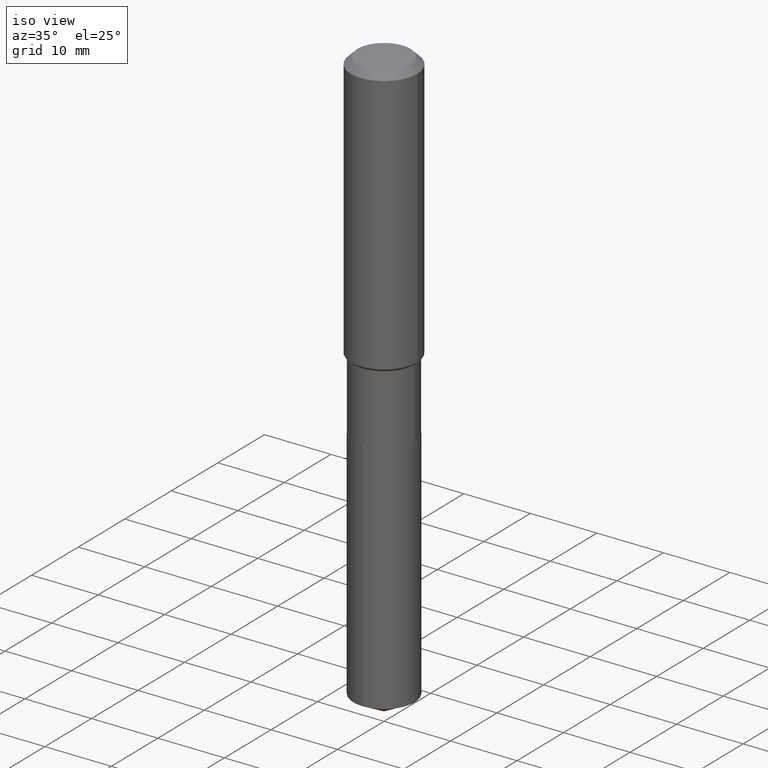
[diagram: clean part render]
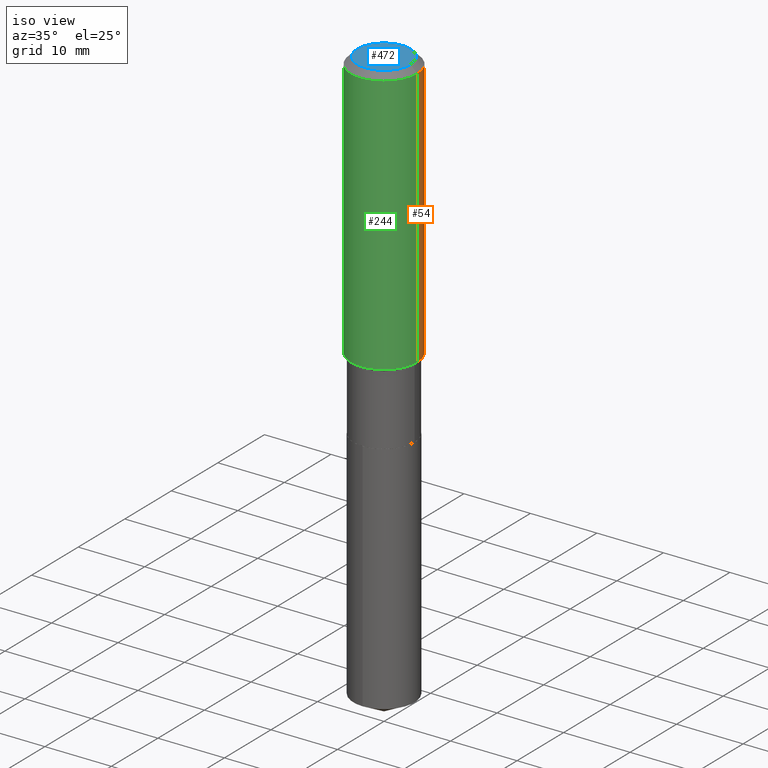
[diagram: same view with three faces highlighted in distinct colors, each labeled with its STEP entity id]
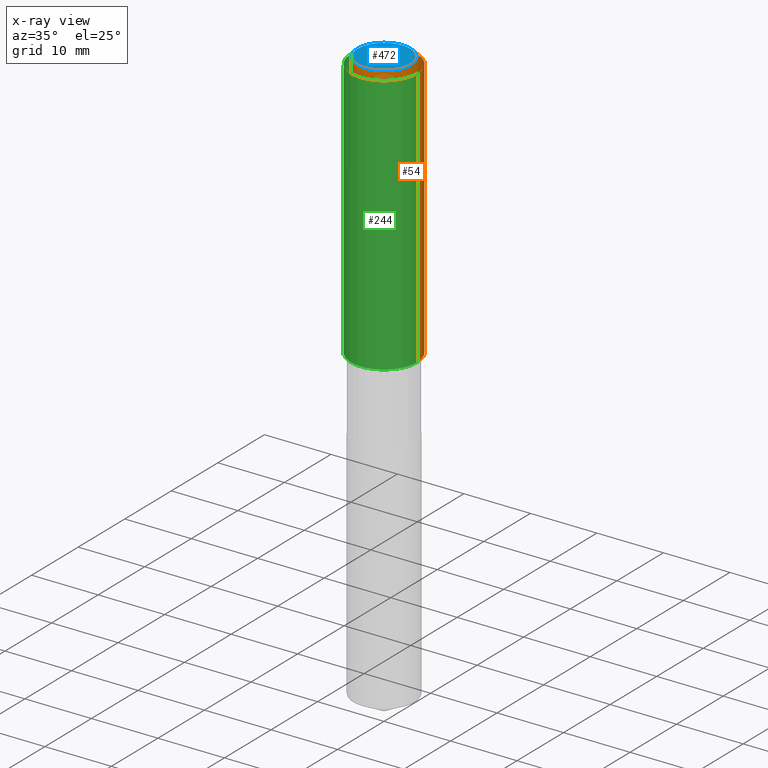
[diagram: x-ray of the same camera — body ghosted, the three highlighted faces saturated]
A machine part, iso view with three faces highlighted in distinct colors.
The next image is the same camera in x-ray (body ghosted, the three faces saturated) — at least one of them is partly hidden behind the body in this view.
Their STEP definitions:

[orange] entity #54 — the highlighted cylindrical surface (partial cylindrical patch) has radius 5 mm, axis along (-0, 0, 1).
#12 = DIRECTION ( 'NONE',  ( -2.445468806185136597E-29, 3.491481338843145583E-15, 1.000000000000000000 ) ) ;
#28 = CIRCLE ( 'NONE', #212, 0.1968500000000000250 ) ;
#36 = EDGE_CURVE ( 'NONE', #324, #253, #110, .T. ) ;
#42 = DIRECTION ( 'NONE',  ( -2.445468806185136877E-29, 3.491481338843145188E-15, 1.000000000000000000 ) ) ;
#44 = DIRECTION ( 'NONE',  ( 1.000000000000000000, -6.982962677686265922E-15, 0.000000000000000000 ) ) ;
#54 = ADVANCED_FACE ( 'NONE', ( #111 ), #425, .T. ) ;
#71 = CARTESIAN_POINT ( 'NONE',  ( -0.1968500000000001082, 1.398703375343757985E-15, -9.682923725166787881E-30 ) ) ;
#72 = DIRECTION ( 'NONE',  ( -2.445468806185136597E-29, 3.491481338843145583E-15, 1.000000000000000000 ) ) ;
#75 = CARTESIAN_POINT ( 'NONE',  ( 0.000000000000000000, 0.000000000000000000, 0.000000000000000000 ) ) ;
#76 = EDGE_CURVE ( 'NONE', #247, #162, #148, .T. ) ;
#94 = CARTESIAN_POINT ( 'NONE',  ( 9.627810689950954155E-31, -1.374596203102556547E-16, -0.03937000000000029365 ) ) ;
#110 = LINE ( 'NONE', #456, #394 ) ;
#111 = FACE_OUTER_BOUND ( 'NONE', #469, .T. ) ;
#113 = DIRECTION ( 'NONE',  ( -2.445468806185136597E-29, 3.491481338843145583E-15, 1.000000000000000000 ) ) ;
#119 = DIRECTION ( 'NONE',  ( -2.445468806185136877E-29, 3.491481338843145188E-15, 1.000000000000000000 ) ) ;
#148 = LINE ( 'NONE', #71, #250 ) ;
#151 = AXIS2_PLACEMENT_3D ( 'NONE', #222, #113, #44 ) ;
#161 = CARTESIAN_POINT ( 'NONE',  ( 0.1968500000000000250, -1.512055823412797189E-15, -0.03937000000000029365 ) ) ;
#162 = VERTEX_POINT ( 'NONE', #384 ) ;
#170 = EDGE_CURVE ( 'NONE', #324, #247, #269, .T. ) ;
#185 = ORIENTED_EDGE ( 'NONE', *, *, #76, .T. ) ;
#189 = ORIENTED_EDGE ( 'NONE', *, *, #399, .F. ) ;
#197 = DIRECTION ( 'NONE',  ( 1.000000000000000000, -6.982962677686266711E-15, 4.876176775795935793E-29 ) ) ;
#212 = AXIS2_PLACEMENT_3D ( 'NONE', #94, #12, #216 ) ;
#216 = DIRECTION ( 'NONE',  ( 1.000000000000000000, -6.982962677686265922E-15, 0.000000000000000000 ) ) ;
#222 = CARTESIAN_POINT ( 'NONE',  ( 3.872277581153853552E-29, -5.528586125991177772E-15, -1.583449999999999580 ) ) ;
#238 = ORIENTED_EDGE ( 'NONE', *, *, #36, .F. ) ;
#247 = VERTEX_POINT ( 'NONE', #464 ) ;
#250 = VECTOR ( 'NONE', #42, 39.37007874015748143 ) ;
#253 = VERTEX_POINT ( 'NONE', #161 ) ;
#268 = CARTESIAN_POINT ( 'NONE',  ( 0.1968500000000002192, -6.903182329093720169E-15, -1.583449999999999580 ) ) ;
#269 = CIRCLE ( 'NONE', #151, 0.1968500000000002192 ) ;
#313 = AXIS2_PLACEMENT_3D ( 'NONE', #75, #72, #197 ) ;
#324 = VERTEX_POINT ( 'NONE', #268 ) ;
#384 = CARTESIAN_POINT ( 'NONE',  ( -0.1968500000000000250, -1.434319497806958297E-15, -0.03937000000000029365 ) ) ;
#394 = VECTOR ( 'NONE', #119, 39.37007874015748143 ) ;
#399 = EDGE_CURVE ( 'NONE', #253, #162, #28, .T. ) ;
#425 = CYLINDRICAL_SURFACE ( 'NONE', #313, 0.1968500000000001082 ) ;
#433 = ORIENTED_EDGE ( 'NONE', *, *, #170, .T. ) ;
#456 = CARTESIAN_POINT ( 'NONE',  ( 0.1968500000000001082, -1.374596203102542397E-15, 9.598753983154305062E-30 ) ) ;
#464 = CARTESIAN_POINT ( 'NONE',  ( -0.1968500000000002192, -4.129882750647417618E-15, -1.583449999999999580 ) ) ;
#469 = EDGE_LOOP ( 'NONE', ( #433, #185, #189, #238 ) ) ;

[blue] entity #472 — the highlighted planar face has unit normal (0, -0, -1).
#23 = EDGE_CURVE ( 'NONE', #81, #259, #168, .T. ) ;
#73 = AXIS2_PLACEMENT_3D ( 'NONE', #131, #333, #481 ) ;
#81 = VERTEX_POINT ( 'NONE', #225 ) ;
#83 = AXIS2_PLACEMENT_3D ( 'NONE', #415, #477, #145 ) ;
#90 = CIRCLE ( 'NONE', #83, 0.1574800000000000089 ) ;
#120 = CARTESIAN_POINT ( 'NONE',  ( 0.1574800000000000089, -1.284169937930321189E-15, 3.855188123724205385E-18 ) ) ;
#121 = ORIENTED_EDGE ( 'NONE', *, *, #23, .T. ) ;
#131 = CARTESIAN_POINT ( 'NONE',  ( -9.427742298522567634E-47, 1.346031739168368355E-32, 3.855188123715870730E-18 ) ) ;
#141 = ORIENTED_EDGE ( 'NONE', *, *, #423, .T. ) ;
#145 = DIRECTION ( 'NONE',  ( 1.000000000000000000, -6.982962677686265922E-15, 4.876223630392693006E-29 ) ) ;
#168 = CIRCLE ( 'NONE', #73, 0.1574800000000000089 ) ;
#178 = DIRECTION ( 'NONE',  ( 2.438088387897960049E-29, -3.491481338843145188E-15, -1.000000000000000000 ) ) ;
#211 = CARTESIAN_POINT ( 'NONE',  ( -4.713871149261283817E-47, 6.730158695841841775E-33, 1.927594061857935365E-18 ) ) ;
#225 = CARTESIAN_POINT ( 'NONE',  ( -0.1574800000000000089, 1.168406772637159618E-15, 3.855188123707939751E-18 ) ) ;
#254 = FACE_OUTER_BOUND ( 'NONE', #409, .T. ) ;
#259 = VERTEX_POINT ( 'NONE', #120 ) ;
#286 = PLANE ( 'NONE',  #320 ) ;
#320 = AXIS2_PLACEMENT_3D ( 'NONE', #211, #178, #406 ) ;
#333 = DIRECTION ( 'NONE',  ( -2.445468806185136597E-29, 3.491481338843145583E-15, 1.000000000000000000 ) ) ;
#406 = DIRECTION ( 'NONE',  ( -1.000000000000000000, 6.982962677686265922E-15, -4.876176775795935793E-29 ) ) ;
#409 = EDGE_LOOP ( 'NONE', ( #121, #141 ) ) ;
#415 = CARTESIAN_POINT ( 'NONE',  ( -9.427742298522567634E-47, 1.346031739168368355E-32, 3.855188123715870730E-18 ) ) ;
#423 = EDGE_CURVE ( 'NONE', #259, #81, #90, .T. ) ;
#472 = ADVANCED_FACE ( 'NONE', ( #254 ), #286, .F. ) ;
#477 = DIRECTION ( 'NONE',  ( -2.445468806185136597E-29, 3.491481338843145583E-15, 1.000000000000000000 ) ) ;
#481 = DIRECTION ( 'NONE',  ( 1.000000000000000000, -6.982962677686265922E-15, 4.876223630392693006E-29 ) ) ;

[green] entity #244 — the highlighted cylindrical surface (partial cylindrical patch) has radius 5 mm, axis along (-0, 0, 1).
#2 = CYLINDRICAL_SURFACE ( 'NONE', #8, 0.1968500000000001082 ) ;
#3 = CARTESIAN_POINT ( 'NONE',  ( 3.872277581153853552E-29, -5.528586125991177772E-15, -1.583449999999999580 ) ) ;
#8 = AXIS2_PLACEMENT_3D ( 'NONE', #427, #308, #312 ) ;
#33 = EDGE_CURVE ( 'NONE', #162, #253, #218, .T. ) ;
#36 = EDGE_CURVE ( 'NONE', #324, #253, #110, .T. ) ;
#42 = DIRECTION ( 'NONE',  ( -2.445468806185136877E-29, 3.491481338843145188E-15, 1.000000000000000000 ) ) ;
#53 = ORIENTED_EDGE ( 'NONE', *, *, #33, .F. ) ;
#71 = CARTESIAN_POINT ( 'NONE',  ( -0.1968500000000001082, 1.398703375343757985E-15, -9.682923725166787881E-30 ) ) ;
#76 = EDGE_CURVE ( 'NONE', #247, #162, #148, .T. ) ;
#96 = CARTESIAN_POINT ( 'NONE',  ( 9.627810689950954155E-31, -1.374596203102556547E-16, -0.03937000000000029365 ) ) ;
#110 = LINE ( 'NONE', #456, #394 ) ;
#114 = AXIS2_PLACEMENT_3D ( 'NONE', #96, #410, #274 ) ;
#119 = DIRECTION ( 'NONE',  ( -2.445468806185136877E-29, 3.491481338843145188E-15, 1.000000000000000000 ) ) ;
#148 = LINE ( 'NONE', #71, #250 ) ;
#161 = CARTESIAN_POINT ( 'NONE',  ( 0.1968500000000000250, -1.512055823412797189E-15, -0.03937000000000029365 ) ) ;
#162 = VERTEX_POINT ( 'NONE', #384 ) ;
#202 = DIRECTION ( 'NONE',  ( -2.445468806185136597E-29, 3.491481338843145583E-15, 1.000000000000000000 ) ) ;
#218 = CIRCLE ( 'NONE', #114, 0.1968500000000000250 ) ;
#244 = ADVANCED_FACE ( 'NONE', ( #460 ), #2, .T. ) ;
#247 = VERTEX_POINT ( 'NONE', #464 ) ;
#250 = VECTOR ( 'NONE', #42, 39.37007874015748143 ) ;
#253 = VERTEX_POINT ( 'NONE', #161 ) ;
#268 = CARTESIAN_POINT ( 'NONE',  ( 0.1968500000000002192, -6.903182329093720169E-15, -1.583449999999999580 ) ) ;
#274 = DIRECTION ( 'NONE',  ( 1.000000000000000000, -6.982962677686265922E-15, 0.000000000000000000 ) ) ;
#275 = DIRECTION ( 'NONE',  ( 1.000000000000000000, -6.982962677686265922E-15, 0.000000000000000000 ) ) ;
#277 = ORIENTED_EDGE ( 'NONE', *, *, #76, .F. ) ;
#279 = EDGE_LOOP ( 'NONE', ( #277, #353, #401, #53 ) ) ;
#280 = EDGE_CURVE ( 'NONE', #247, #324, #414, .T. ) ;
#308 = DIRECTION ( 'NONE',  ( -2.445468806185136597E-29, 3.491481338843145583E-15, 1.000000000000000000 ) ) ;
#312 = DIRECTION ( 'NONE',  ( 1.000000000000000000, -6.982962677686266711E-15, 4.876176775795935793E-29 ) ) ;
#324 = VERTEX_POINT ( 'NONE', #268 ) ;
#353 = ORIENTED_EDGE ( 'NONE', *, *, #280, .T. ) ;
#384 = CARTESIAN_POINT ( 'NONE',  ( -0.1968500000000000250, -1.434319497806958297E-15, -0.03937000000000029365 ) ) ;
#394 = VECTOR ( 'NONE', #119, 39.37007874015748143 ) ;
#401 = ORIENTED_EDGE ( 'NONE', *, *, #36, .T. ) ;
#410 = DIRECTION ( 'NONE',  ( -2.445468806185136597E-29, 3.491481338843145583E-15, 1.000000000000000000 ) ) ;
#414 = CIRCLE ( 'NONE', #431, 0.1968500000000002192 ) ;
#427 = CARTESIAN_POINT ( 'NONE',  ( 0.000000000000000000, 0.000000000000000000, 0.000000000000000000 ) ) ;
#431 = AXIS2_PLACEMENT_3D ( 'NONE', #3, #202, #275 ) ;
#456 = CARTESIAN_POINT ( 'NONE',  ( 0.1968500000000001082, -1.374596203102542397E-15, 9.598753983154305062E-30 ) ) ;
#460 = FACE_OUTER_BOUND ( 'NONE', #279, .T. ) ;
#464 = CARTESIAN_POINT ( 'NONE',  ( -0.1968500000000002192, -4.129882750647417618E-15, -1.583449999999999580 ) ) ;